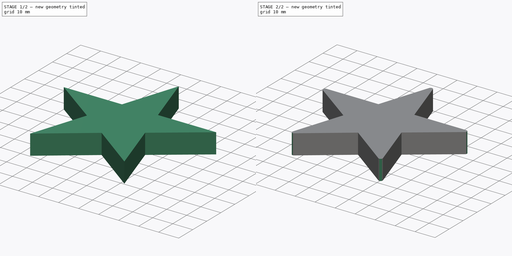
[diagram: build sequence overview — one tinted view per stage of 2, left to right]
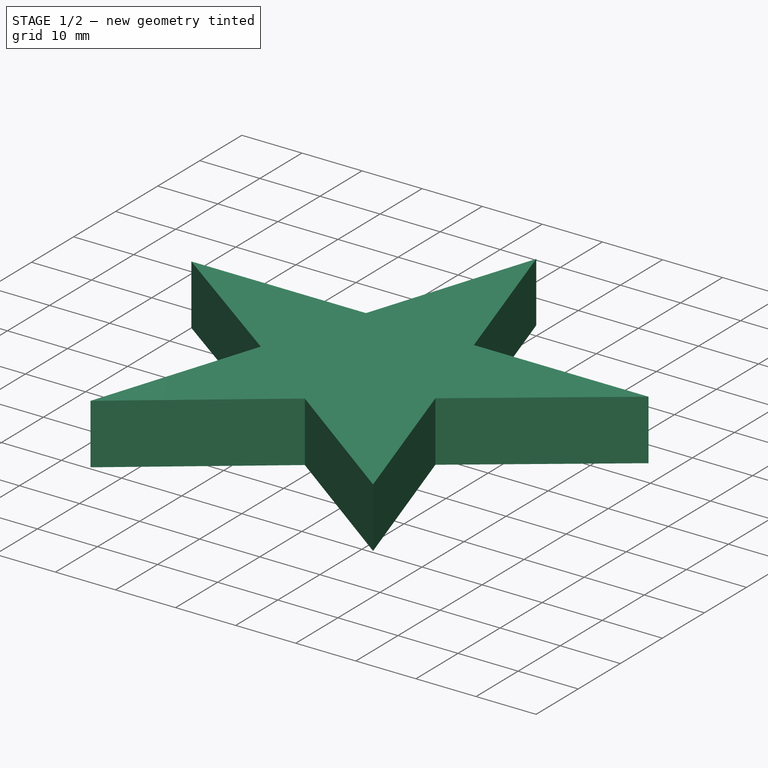
[diagram: stage 1 of 2 — iso view after this stage's code; geometry added in this stage tinted green]
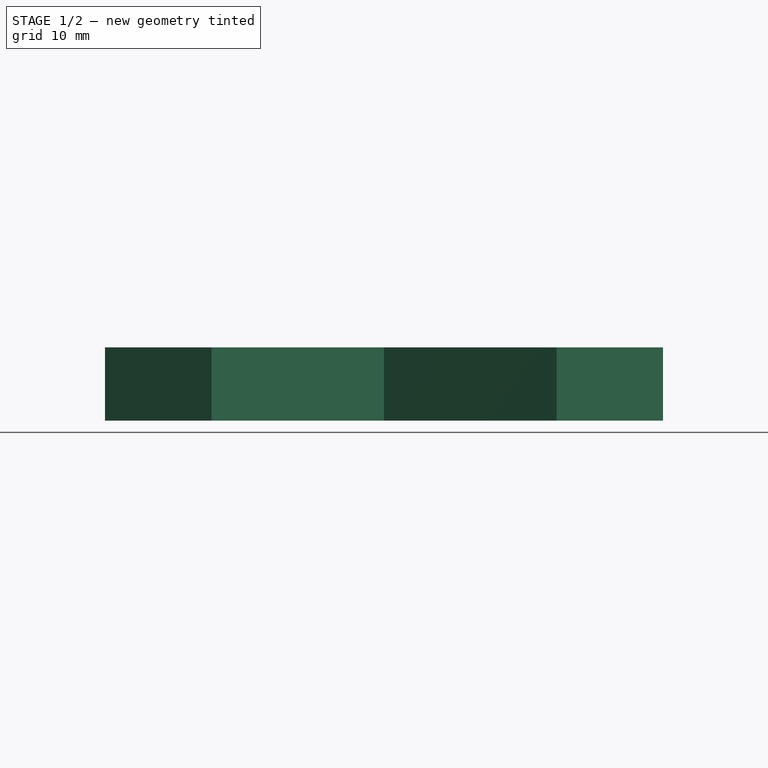
[diagram: stage 1 of 2 — front view after this stage's code; geometry added in this stage tinted green]
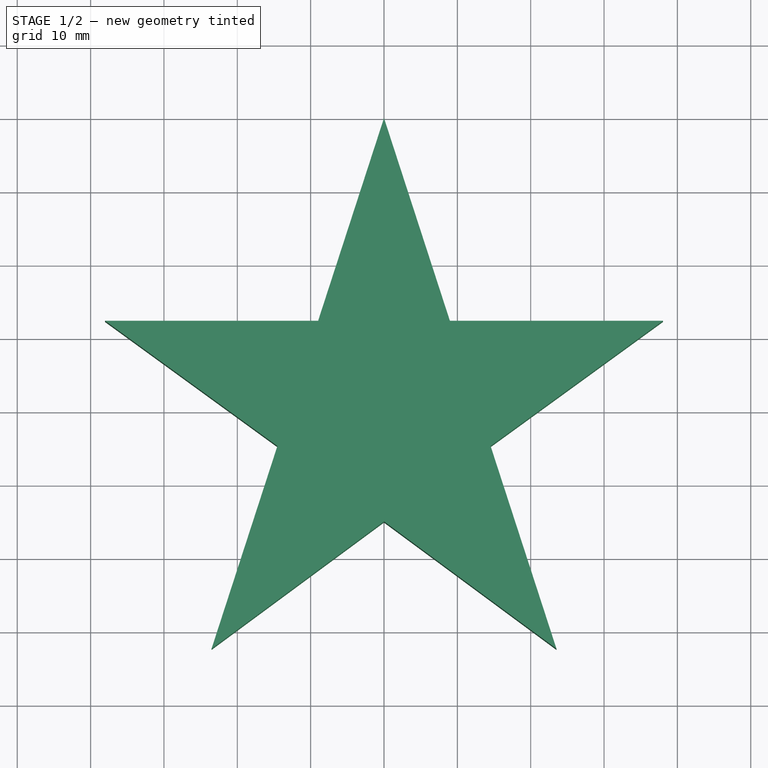
[diagram: stage 1 of 2 — top view after this stage's code; geometry added in this stage tinted green]
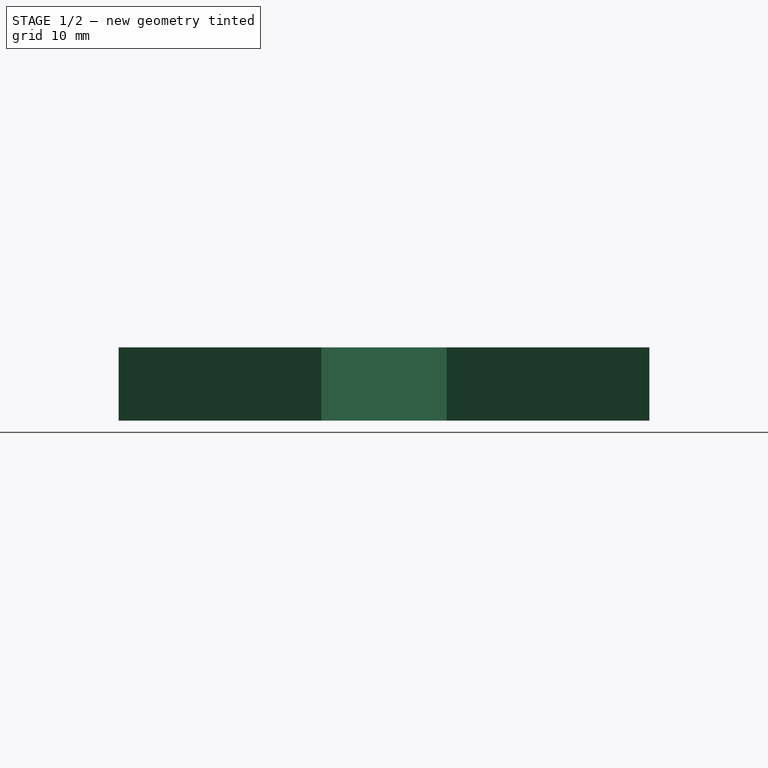
[diagram: stage 1 of 2 — right view after this stage's code; geometry added in this stage tinted green]
FCSTD DOCUMENT  (FreeCAD 0.16R6707 (Git))
Label: Estrella
License: CreativeCommons Attribution-ShareAlike
LicenseURL: http://creativecommons.org/licenses/by-sa/4.0/
objects: Sketcher::SketchObject×1, PartDesign::Pad×1, PartDesign::Fillet×1
note: 4 computed .brp shape members not serialized (recipe doc carries the construction recipe); baked Part::Feature solids carry a one-line shape summary decoded from their .brp

FEATURE [Sketcher::SketchObject] Sketch  label="BCT_Estrella"
  sketch-geometry (15):
    g0: LineSegment StartX=0 StartY=40 StartZ=0 EndX=-8.98056 EndY=12.3607 EndZ=0
    g1: LineSegment StartX=-8.98056 StartY=12.3607 StartZ=0 EndX=-38.0423 EndY=12.3607 EndZ=0
    g2: LineSegment StartX=-38.0423 StartY=12.3607 StartZ=0 EndX=-14.5309 EndY=-4.72136 EndZ=0
    g3: LineSegment StartX=-14.5309 StartY=-4.72136 StartZ=0 EndX=-23.5114 EndY=-32.3607 EndZ=0
    g4: LineSegment StartX=-23.5114 StartY=-32.3607 StartZ=0 EndX=0 EndY=-15 EndZ=0
    g5: LineSegment StartX=0 StartY=-15 StartZ=0 EndX=23.5114 EndY=-32.3607 EndZ=0
    g6: LineSegment StartX=23.5114 StartY=-32.3607 StartZ=0 EndX=14.5309 EndY=-4.72136 EndZ=0
    g7: LineSegment StartX=14.5309 StartY=-4.72136 StartZ=0 EndX=38.0423 EndY=12.3607 EndZ=0
    g8: LineSegment StartX=38.0423 StartY=12.3607 StartZ=0 EndX=8.98056 EndY=12.3607 EndZ=0
    g9: LineSegment StartX=8.98056 StartY=12.3607 StartZ=0 EndX=0 EndY=40 EndZ=0
    g10: LineSegment [constr] StartX=-8.98056 StartY=12.3607 StartZ=0 EndX=0 EndY=0 EndZ=0
    g11: LineSegment [constr] StartX=-38.0423 StartY=12.3607 StartZ=0 EndX=0 EndY=0 EndZ=0
    g12: LineSegment [constr] StartX=0 StartY=0 StartZ=0 EndX=-23.5114 EndY=-32.3607 EndZ=0
    g13: LineSegment [constr] StartX=-14.5309 StartY=-4.72136 StartZ=0 EndX=0 EndY=0 EndZ=0
    g14: LineSegment [constr] StartX=0 StartY=0 StartZ=0 EndX=0 EndY=40 EndZ=0
  constraints (36):
    c: Coincident(g0,g1)
    c: Horizontal(g1)
    c: Coincident(g1,g2)
    c: Coincident(g2,g3)
    c: Coincident(g3,g4)
    c: Coincident(g4,g5)
    c: Coincident(g5,g6)
    c: Coincident(g6,g7)
    c: Coincident(g7,g8)
    c: Coincident(g8,g9)
    c: Coincident(g0,g9)
    c: Coincident(g10,g0)
    c: Coincident(g10,g-1)
    c: Coincident(g11,g1)
    c: Coincident(g11,g-1)
    c: DistanceY(g-1,g0) = 40
    c: PointOnObject(g0,g-2)
    c: PointOnObject(g4,g-2)
    c: Symmetric(g1,g7,g-2)
    c: Symmetric(g8,g0,g-2)
    c: Symmetric(g2,g6,g-2)
    c: Symmetric(g3,g5,g-2)
    c: DistanceY(g4,g-1) = 15
    c: Angle(g-2,g10) = 0.628319
    c: Angle(g-2,g11) = 1.25664
    c: Coincident(g12,g-1)
    c: Coincident(g3,g12)
    c: Angle(g11,g12) = 1.25664
    c: Angle(g11,g13) = 0.628319
    c: Coincident(g2,g13)
    c: Coincident(g10,g13)
    c: Equal(g11,g12)
    c: Equal(g13,g10)
    c: Coincident(g14,g-1)
    c: Coincident(g14,g0)
    c: Equal(g11,g14)
FEATURE [PartDesign::Pad] Pad  label="Estrella"
  Length = 10
  Length2 = 100
  Sketch = -> Sketch
  Type = 0
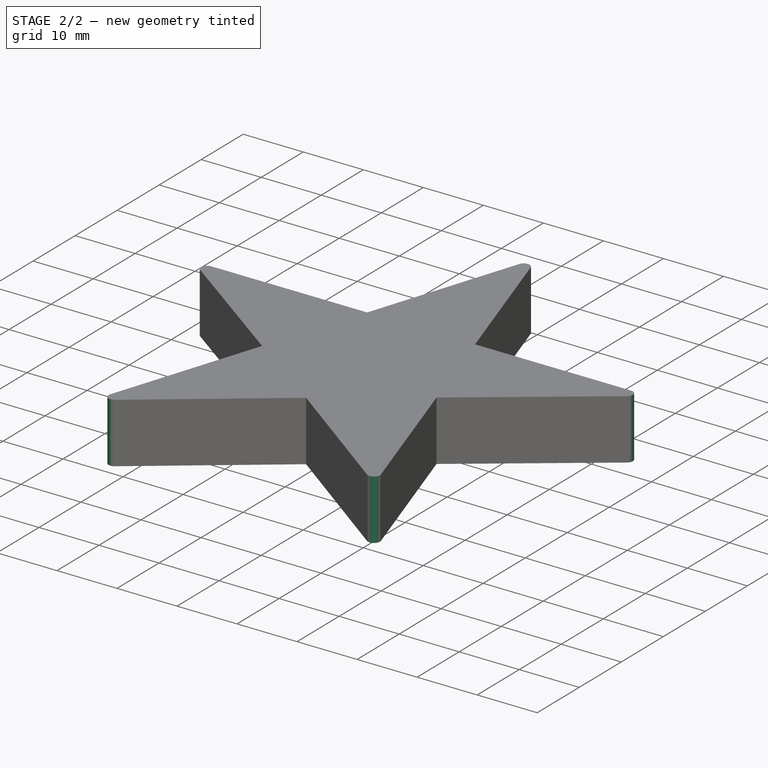
[diagram: stage 2 of 2 — iso view after this stage's code; geometry added in this stage tinted green]
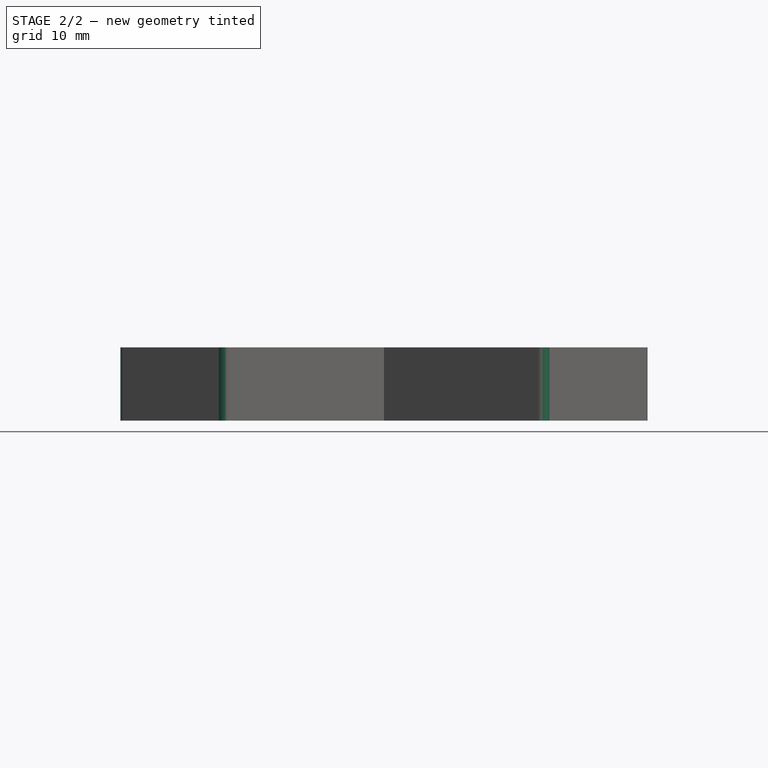
[diagram: stage 2 of 2 — front view after this stage's code; geometry added in this stage tinted green]
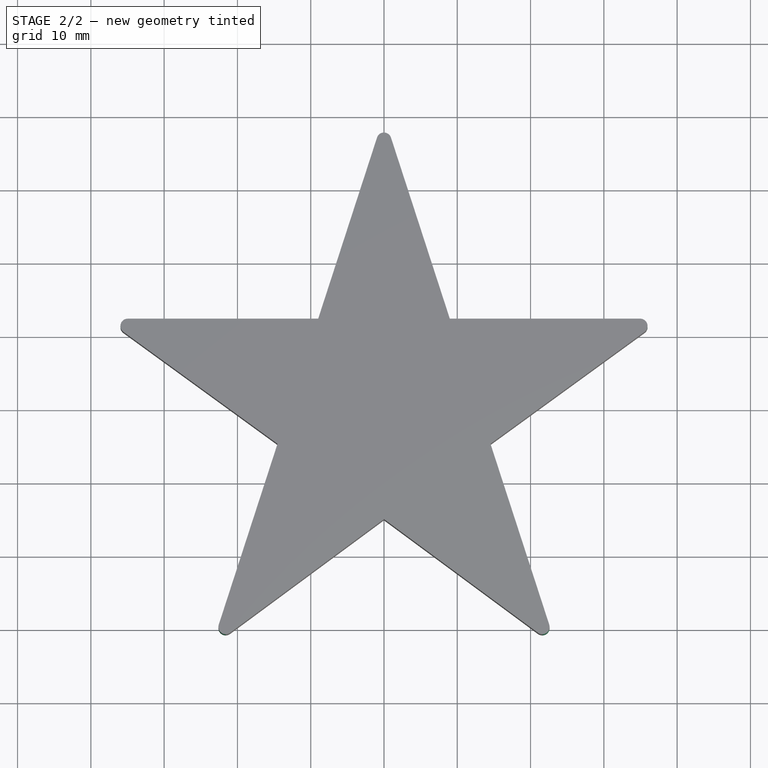
[diagram: stage 2 of 2 — top view after this stage's code; geometry added in this stage tinted green]
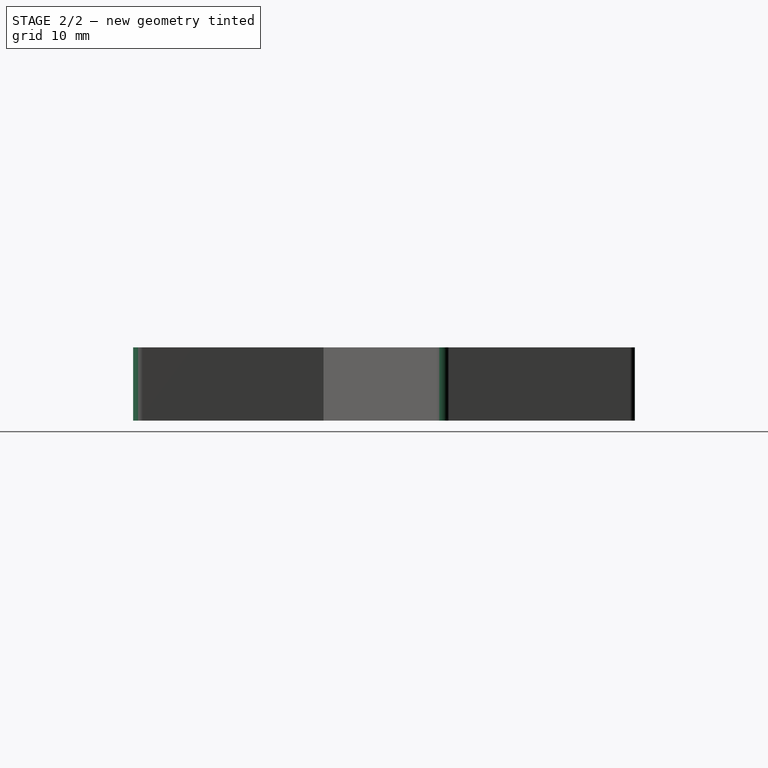
[diagram: stage 2 of 2 — right view after this stage's code; geometry added in this stage tinted green]
FEATURE [PartDesign::Fillet] Fillet  label="Estrella_redondeada"
  Base = -> Pad [Edge23,Edge1,Edge5,Edge11,Edge17]
  Radius = 1
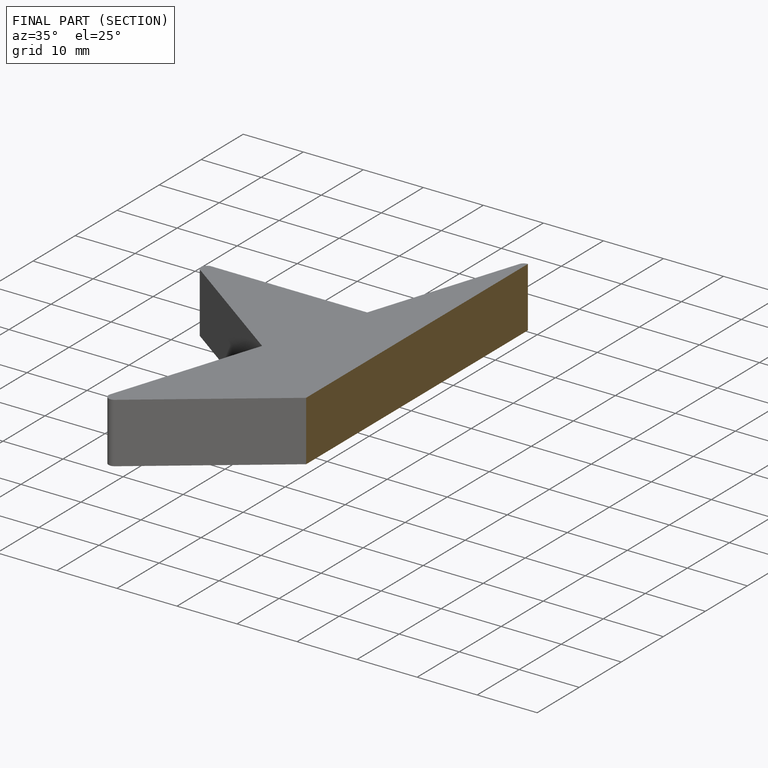
[diagram: finished part — half-section view (interior)]
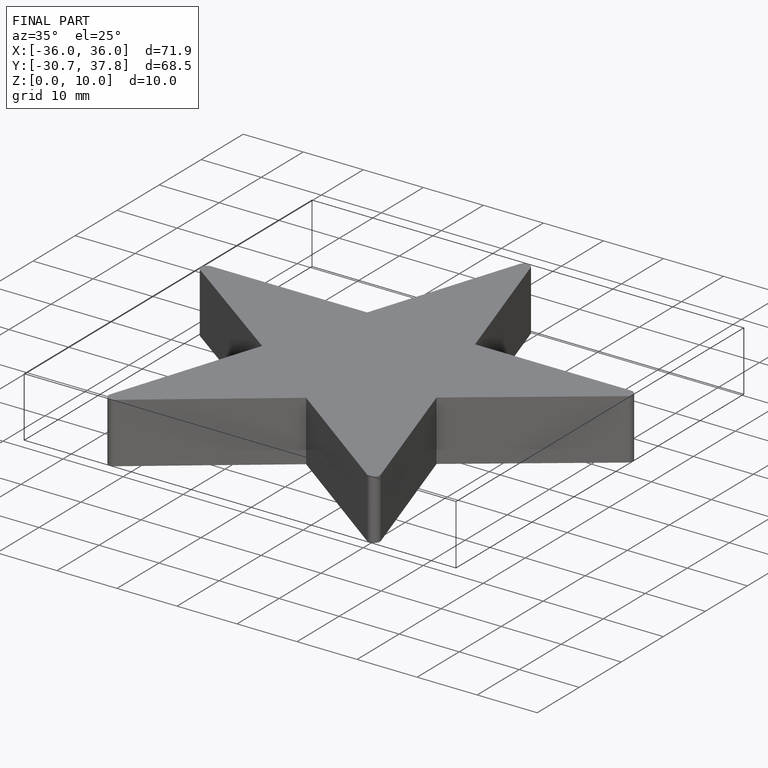
[diagram: finished part — iso view with bounding-box wireframe]
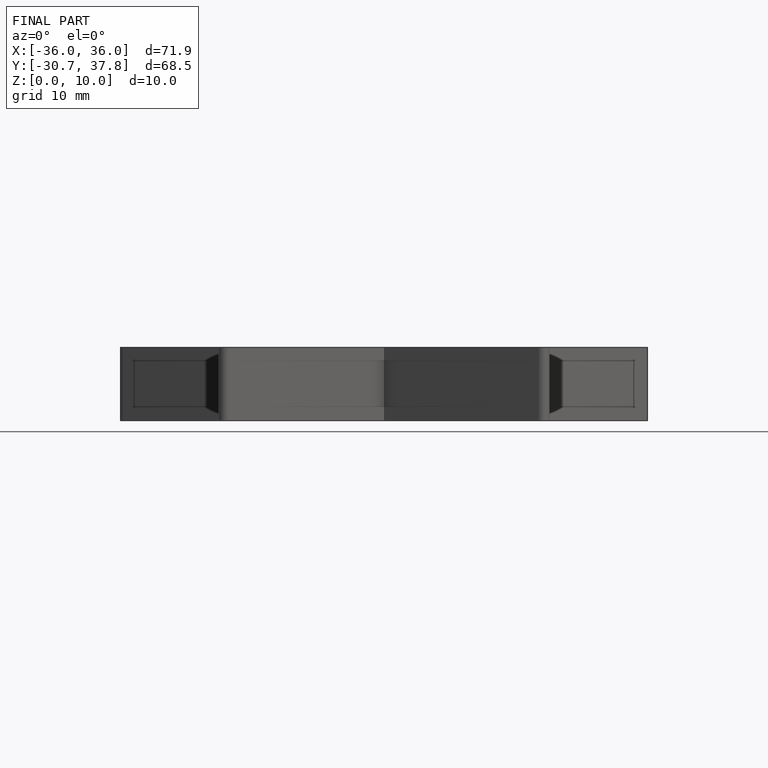
[diagram: finished part — front view with bounding-box wireframe]
